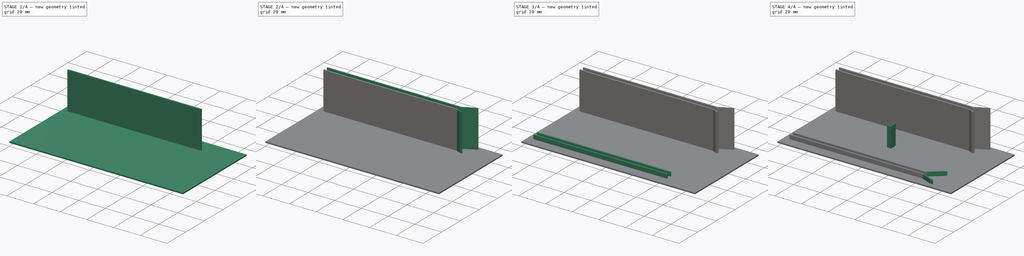
[diagram: build sequence overview — one tinted view per stage of 4, left to right]
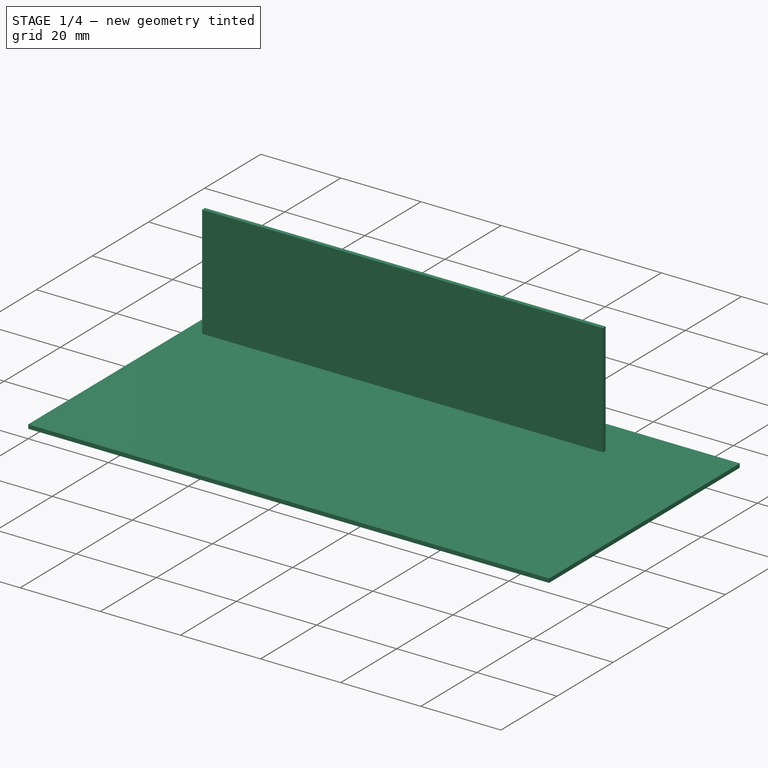
[diagram: stage 1 of 4 — iso view after this stage's code; geometry added in this stage tinted green]
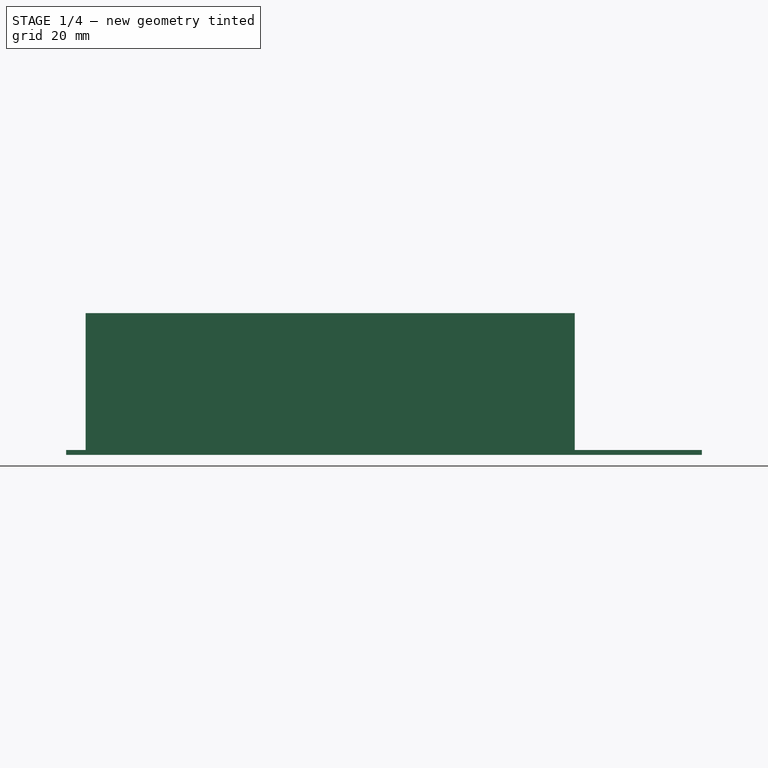
[diagram: stage 1 of 4 — front view after this stage's code; geometry added in this stage tinted green]
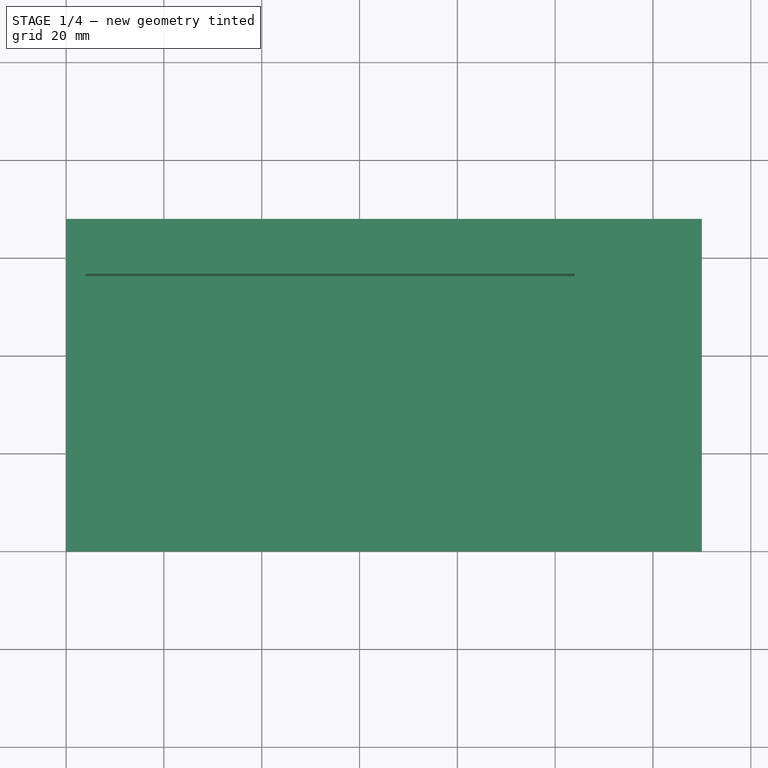
[diagram: stage 1 of 4 — top view after this stage's code; geometry added in this stage tinted green]
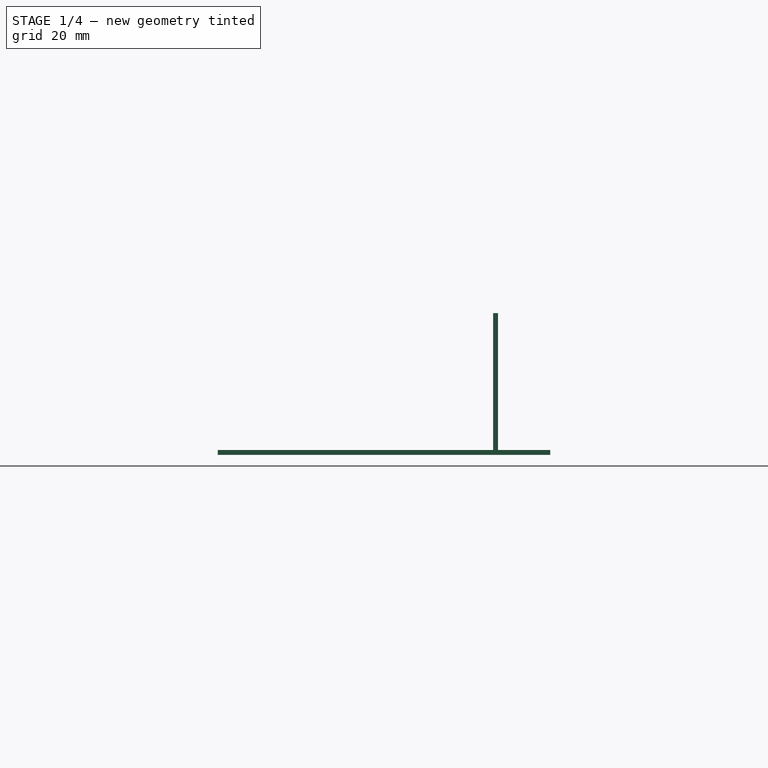
[diagram: stage 1 of 4 — right view after this stage's code; geometry added in this stage tinted green]
FCSTD DOCUMENT  (FreeCAD 0.17R13541 (Git))
Label: pi_top_2
License: All rights reserved
LicenseURL: http://en.wikipedia.org/wiki/All_rights_reserved
objects: Sketcher::SketchObject×9, PartDesign::Pad×9, PartDesign::Body×1
note: 28 computed .brp shape members not serialized (recipe doc carries the construction recipe); baked Part::Feature solids carry a one-line shape summary decoded from their .brp

FEATURE [Sketcher::SketchObject] Sketch
  MapMode = 5
  Support = -> [XY_Plane]
  sketch-geometry (4):
    g0: LineSegment StartX=0 StartY=0 StartZ=0 EndX=130 EndY=0 EndZ=0
    g1: LineSegment StartX=130 StartY=0 StartZ=0 EndX=130 EndY=68 EndZ=0
    g2: LineSegment StartX=130 StartY=68 StartZ=0 EndX=0 EndY=68 EndZ=0
    g3: LineSegment StartX=0 StartY=68 StartZ=0 EndX=0 EndY=0 EndZ=0
  constraints (13):
    c: Coincident(g0,g1)
    c: Coincident(g1,g2)
    c: Coincident(g2,g3)
    c: Coincident(g3,g0)
    c: Horizontal(g0)
    c: Horizontal(g2)
    c: Vertical(g1)
    c: Vertical(g3)
    c: Coincident(g0,g-1)
    c: Equal(g0,g2)
    c: Equal(g1,g3)
    c: Distance(g0) = 130  'total length'
    c: Distance(g3) = 68  'total height'
FEATURE [PartDesign::Pad] Pad
  Length = 1
  Length2 = 100
  Profile = -> Sketch
  Reversed = true
  Type = 0
FEATURE [Sketcher::SketchObject] Sketch001
  MapMode = 5
  Support = -> [XY_Plane]
  sketch-geometry (4):
    g0: LineSegment StartX=4 StartY=56.3 StartZ=0 EndX=104 EndY=56.3 EndZ=0
    g1: LineSegment StartX=104 StartY=56.3 StartZ=0 EndX=104 EndY=57.3 EndZ=0
    g2: LineSegment StartX=104 StartY=57.3 StartZ=0 EndX=4 EndY=57.3 EndZ=0
    g3: LineSegment StartX=4 StartY=57.3 StartZ=0 EndX=4 EndY=56.3 EndZ=0
  constraints (14):
    c: Coincident(g0,g1)
    c: Coincident(g1,g2)
    c: Coincident(g2,g3)
    c: Coincident(g3,g0)
    c: Horizontal(g0)
    c: Horizontal(g2)
    c: Vertical(g1)
    c: Vertical(g3)
    c: Equal(g0,g2)
    c: Equal(g1,g3)
    c: Distance(g0) = 100
    c: Distance(g3) = 1
    c: DistanceX(g2) = 4
    c: DistanceY(g2) = 57.3
FEATURE [PartDesign::Pad] Pad001
  BaseFeature = -> Pad
  Length = 28
  Length2 = 100
  Profile = -> Sketch001
  Type = 0
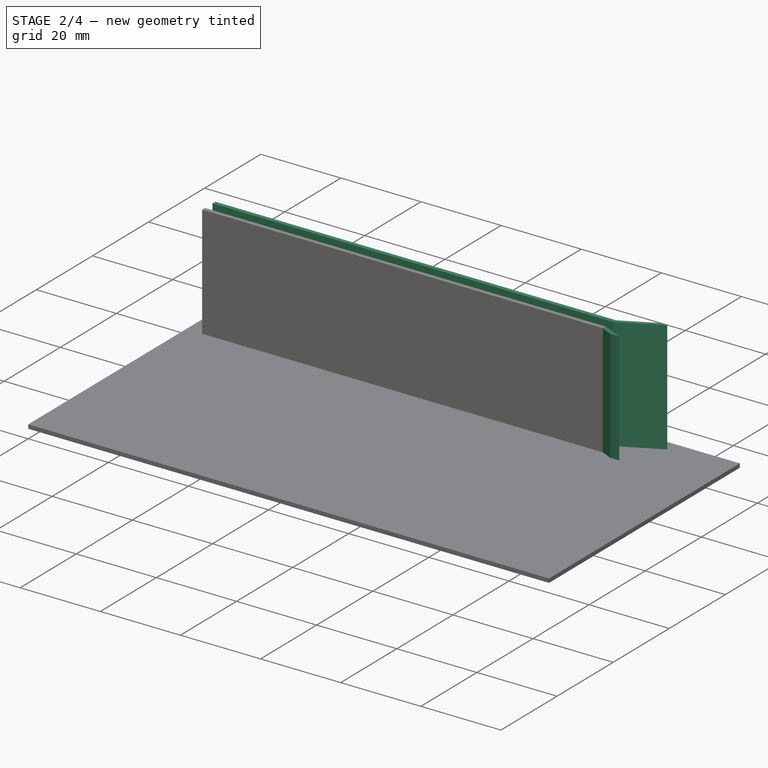
[diagram: stage 2 of 4 — iso view after this stage's code; geometry added in this stage tinted green]
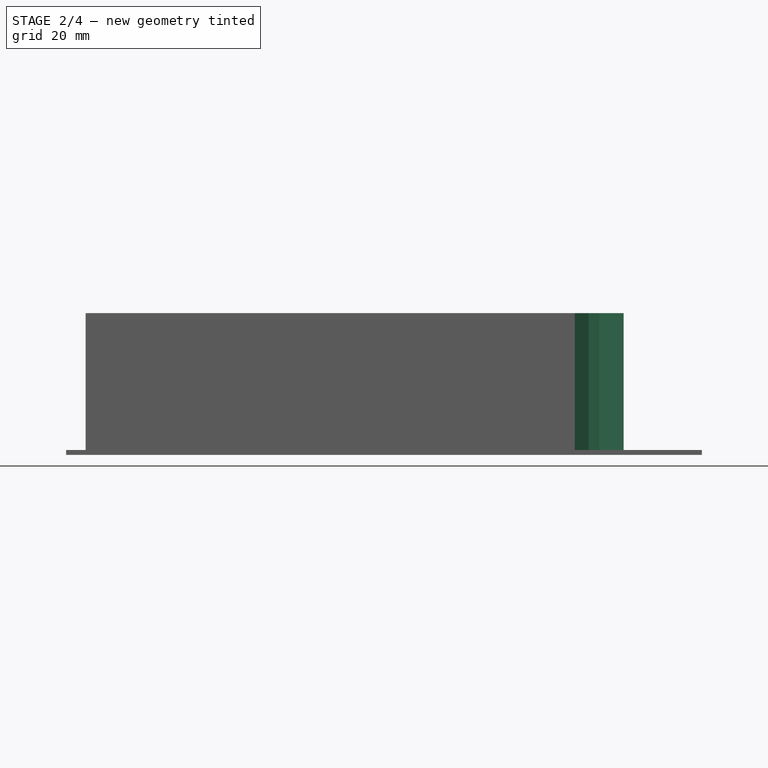
[diagram: stage 2 of 4 — front view after this stage's code; geometry added in this stage tinted green]
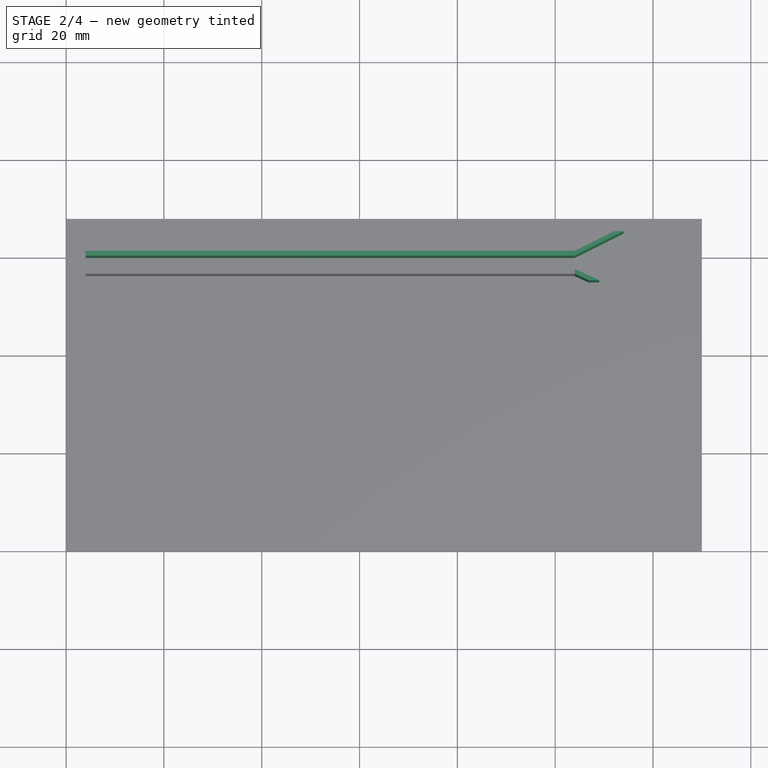
[diagram: stage 2 of 4 — top view after this stage's code; geometry added in this stage tinted green]
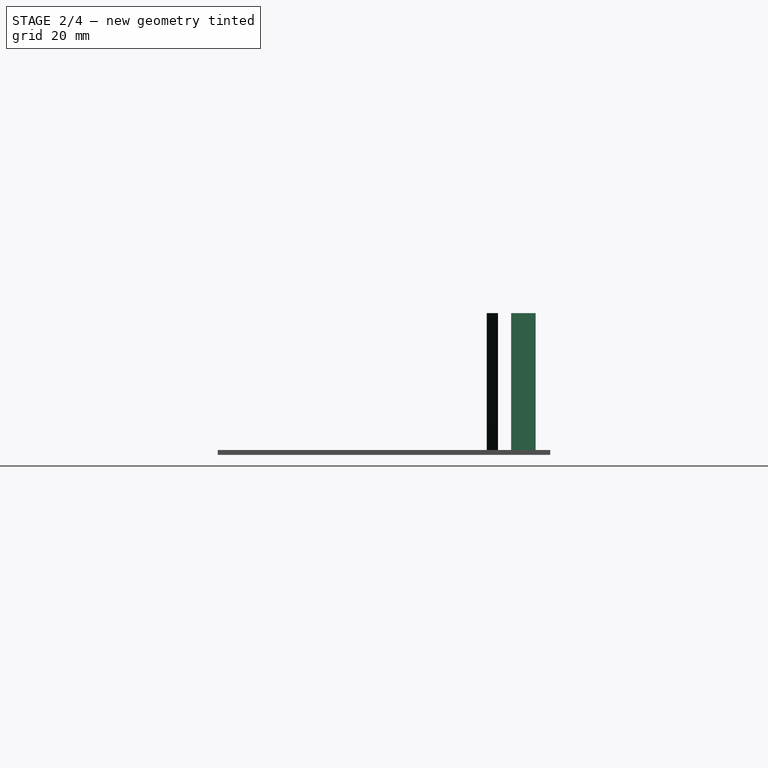
[diagram: stage 2 of 4 — right view after this stage's code; geometry added in this stage tinted green]
FEATURE [Sketcher::SketchObject] Sketch002
  MapMode = 5
  Support = -> [XY_Plane]
  sketch-geometry (4):
    g0: LineSegment StartX=4 StartY=60 StartZ=0 EndX=104 EndY=60 EndZ=0
    g1: LineSegment StartX=104 StartY=60 StartZ=0 EndX=104 EndY=61 EndZ=0
    g2: LineSegment StartX=104 StartY=61 StartZ=0 EndX=4 EndY=61 EndZ=0
    g3: LineSegment StartX=4 StartY=61 StartZ=0 EndX=4 EndY=60 EndZ=0
  constraints (14):
    c: Coincident(g0,g1)
    c: Coincident(g1,g2)
    c: Coincident(g2,g3)
    c: Coincident(g3,g0)
    c: Horizontal(g0)
    c: Horizontal(g2)
    c: Vertical(g1)
    c: Vertical(g3)
    c: Equal(g0,g2)
    c: Equal(g1,g3)
    c: Distance(g0) = 100
    c: Distance(g3) = 1
    c: DistanceX(g2) = 4
    c: DistanceY(g2) = 61
FEATURE [PartDesign::Pad] Pad002
  BaseFeature = -> Pad001
  Length = 28
  Length2 = 100
  Profile = -> Sketch002
  Type = 0
FEATURE [Sketcher::SketchObject] Sketch003
  MapMode = 5
  Support = -> [XY_Plane]
  sketch-geometry (8):
    g0: LineSegment StartX=104 StartY=61 StartZ=0 EndX=112 EndY=65 EndZ=0
    g1: LineSegment StartX=114 StartY=65 StartZ=0 EndX=112 EndY=65 EndZ=0
    g2: LineSegment StartX=114 StartY=65 StartZ=0 EndX=104 EndY=60 EndZ=0
    g3: LineSegment StartX=104 StartY=60 StartZ=0 EndX=104 EndY=61 EndZ=0
    g4: LineSegment StartX=104 StartY=57.3 StartZ=0 EndX=109 EndY=55 EndZ=0
    g5: LineSegment StartX=109 StartY=55 StartZ=0 EndX=106.826 EndY=55 EndZ=0
    g6: LineSegment StartX=106.826 StartY=55 StartZ=0 EndX=104 EndY=56.3 EndZ=0
    g7: LineSegment StartX=104 StartY=56.3 StartZ=0 EndX=104 EndY=57.3 EndZ=0
  constraints (25):
    c: Coincident(g1,g0)
    c: Coincident(g2,g1)
    c: Coincident(g3,g2)
    c: DistanceX(g0) = 104
    c: DistanceY(g0) = 61
    c: Parallel(g0,g2)
    c: Vertical(g3)
    c: Distance(g3) = 1
    c: DistanceX(g3) = 104
    c: DistanceY(g3) = 61
    c: Horizontal(g1)
    c: Coincident(g5,g4)
    c: Horizontal(g5)
    c: Coincident(g6,g5)
    c: Coincident(g7,g6)
    c: Coincident(g7,g4)
    c: Vertical(g7)
    c: Parallel(g4,g6)
    c: Distance(g7) = 1
    c: DistanceX(g4) = 109
    c: DistanceY(g4) = 55
    c: DistanceX(g4) = 104
    c: DistanceY(g4) = 57.3
    c: DistanceX(g1) = 114
    c: DistanceY(g1) = 65
FEATURE [PartDesign::Pad] Pad003
  BaseFeature = -> Pad002
  Length = 28
  Length2 = 100
  Profile = -> Sketch003
  Type = 0
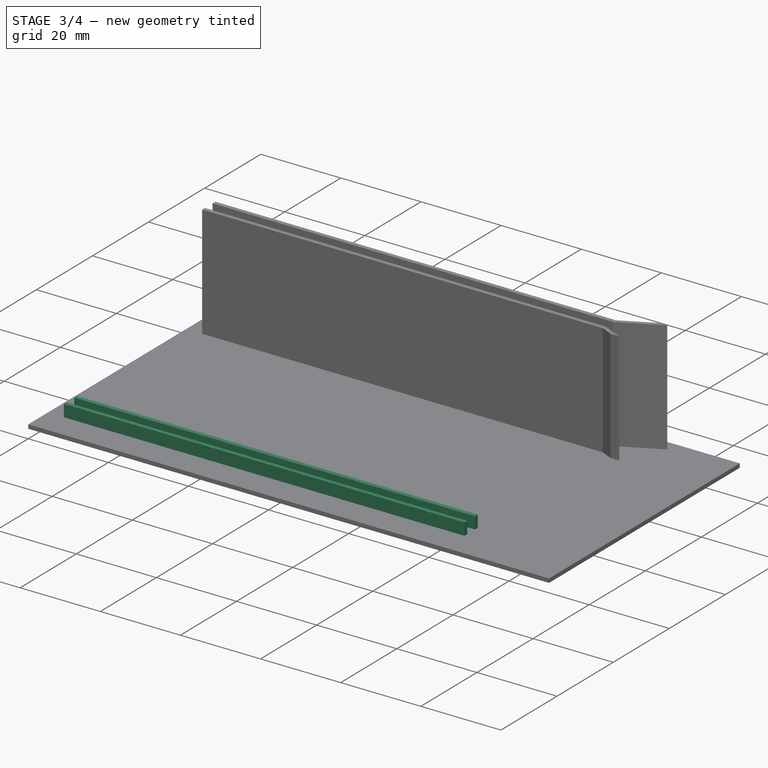
[diagram: stage 3 of 4 — iso view after this stage's code; geometry added in this stage tinted green]
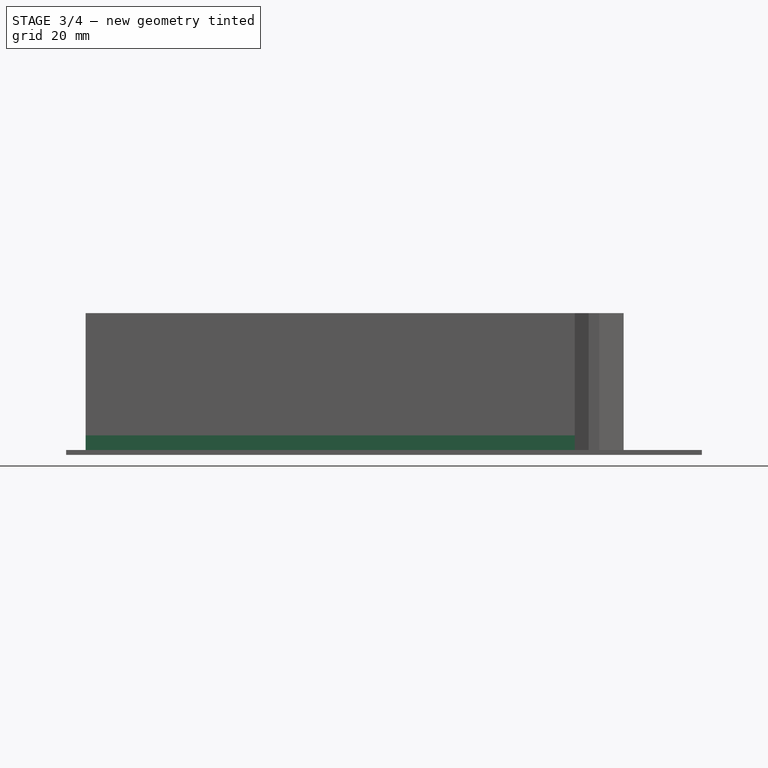
[diagram: stage 3 of 4 — front view after this stage's code; geometry added in this stage tinted green]
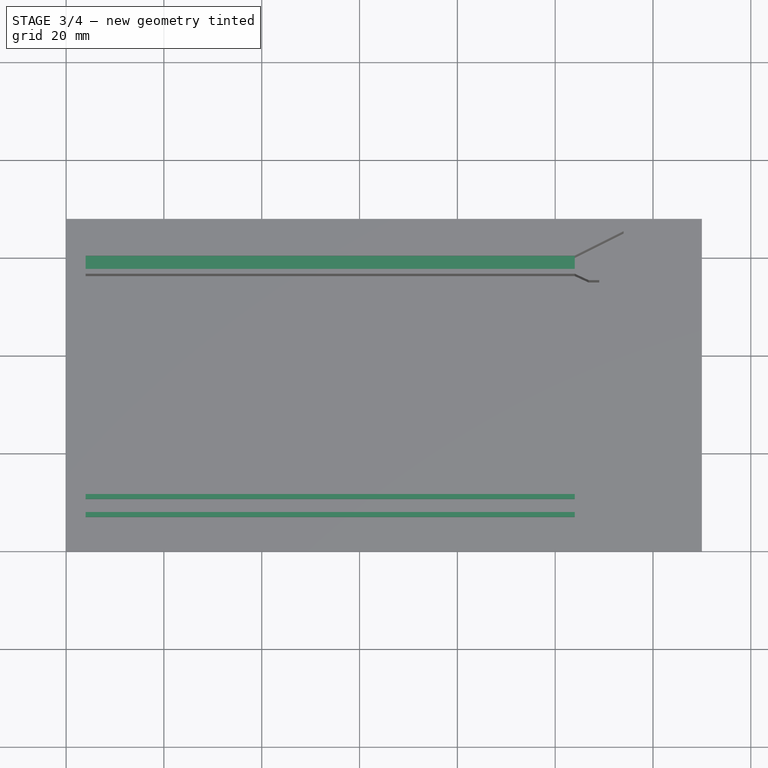
[diagram: stage 3 of 4 — top view after this stage's code; geometry added in this stage tinted green]
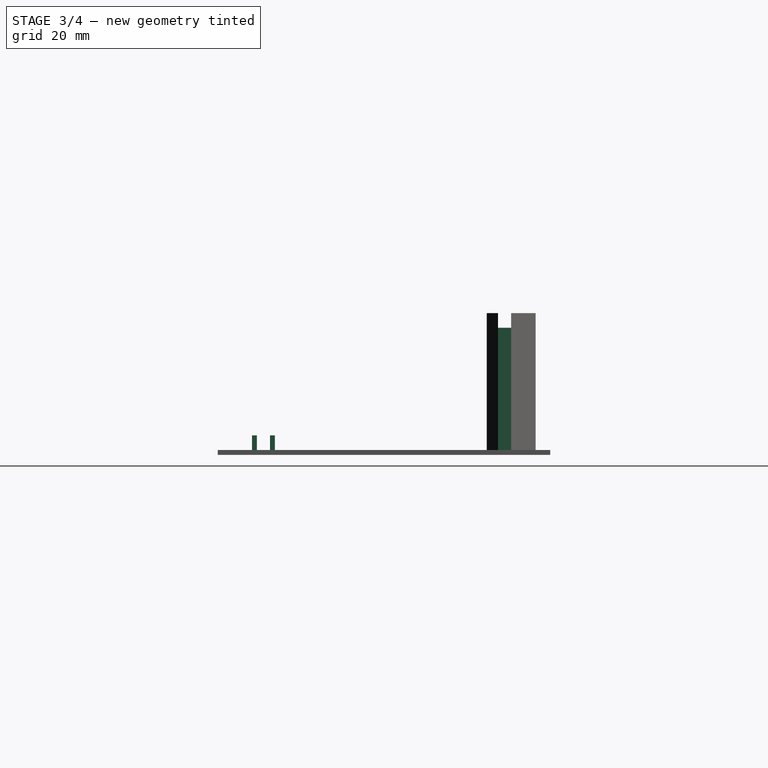
[diagram: stage 3 of 4 — right view after this stage's code; geometry added in this stage tinted green]
FEATURE [Sketcher::SketchObject] Sketch004
  MapMode = 5
  Support = -> [XY_Plane]
  sketch-geometry (4):
    g0: LineSegment StartX=4 StartY=60 StartZ=0 EndX=104 EndY=60 EndZ=0
    g1: LineSegment StartX=104 StartY=60 StartZ=0 EndX=104 EndY=57.3 EndZ=0
    g2: LineSegment StartX=104 StartY=57.3 StartZ=0 EndX=4 EndY=57.3 EndZ=0
    g3: LineSegment StartX=4 StartY=57.3 StartZ=0 EndX=4 EndY=60 EndZ=0
  constraints (12):
    c: Coincident(g0,g1)
    c: Coincident(g1,g2)
    c: Coincident(g2,g3)
    c: Coincident(g3,g0)
    c: Horizontal(g0)
    c: Horizontal(g2)
    c: Vertical(g1)
    c: Vertical(g3)
    c: DistanceX(g0) = 4
    c: DistanceY(g0) = 60
    c: Distance(g0) = 100
    c: Distance(g1) = 2.7
FEATURE [PartDesign::Pad] Pad004
  BaseFeature = -> Pad003
  Length = 25
  Length2 = 100
  Profile = -> Sketch004
  Type = 0
FEATURE [Sketcher::SketchObject] Sketch005
  MapMode = 5
  Support = -> [XY_Plane]
  sketch-geometry (4):
    g0: LineSegment StartX=4 StartY=8 StartZ=0 EndX=104 EndY=8 EndZ=0
    g1: LineSegment StartX=104 StartY=8 StartZ=0 EndX=104 EndY=7 EndZ=0
    g2: LineSegment StartX=104 StartY=7 StartZ=0 EndX=4 EndY=7 EndZ=0
    g3: LineSegment StartX=4 StartY=7 StartZ=0 EndX=4 EndY=8 EndZ=0
  constraints (14):
    c: Coincident(g0,g1)
    c: Coincident(g1,g2)
    c: Coincident(g2,g3)
    c: Coincident(g3,g0)
    c: Horizontal(g0)
    c: Horizontal(g2)
    c: Vertical(g1)
    c: Vertical(g3)
    c: Equal(g0,g2)
    c: Equal(g1,g3)
    c: Distance(g0) = 100
    c: Distance(g3) = 1
    c: DistanceX(g2) = 4
    c: DistanceY(g2) = 7
FEATURE [PartDesign::Pad] Pad005
  BaseFeature = -> Pad004
  Length = 3
  Length2 = 100
  Profile = -> Sketch005
  Type = 0
FEATURE [Sketcher::SketchObject] Sketch006
  MapMode = 5
  Support = -> [XY_Plane]
  sketch-geometry (4):
    g0: LineSegment StartX=4 StartY=11.7 StartZ=0 EndX=104 EndY=11.7 EndZ=0
    g1: LineSegment StartX=104 StartY=11.7 StartZ=0 EndX=104 EndY=10.7 EndZ=0
    g2: LineSegment StartX=104 StartY=10.7 StartZ=0 EndX=4 EndY=10.7 EndZ=0
    g3: LineSegment StartX=4 StartY=10.7 StartZ=0 EndX=4 EndY=11.7 EndZ=0
  constraints (14):
    c: Coincident(g0,g1)
    c: Coincident(g1,g2)
    c: Coincident(g2,g3)
    c: Coincident(g3,g0)
    c: Horizontal(g0)
    c: Horizontal(g2)
    c: Vertical(g1)
    c: Vertical(g3)
    c: Equal(g0,g2)
    c: Equal(g1,g3)
    c: Distance(g0) = 100
    c: Distance(g3) = 1
    c: DistanceX(g2) = 4
    c: DistanceY(g2) = 10.7
FEATURE [PartDesign::Pad] Pad006
  BaseFeature = -> Pad005
  Length = 3
  Length2 = 100
  Profile = -> Sketch006
  Type = 0
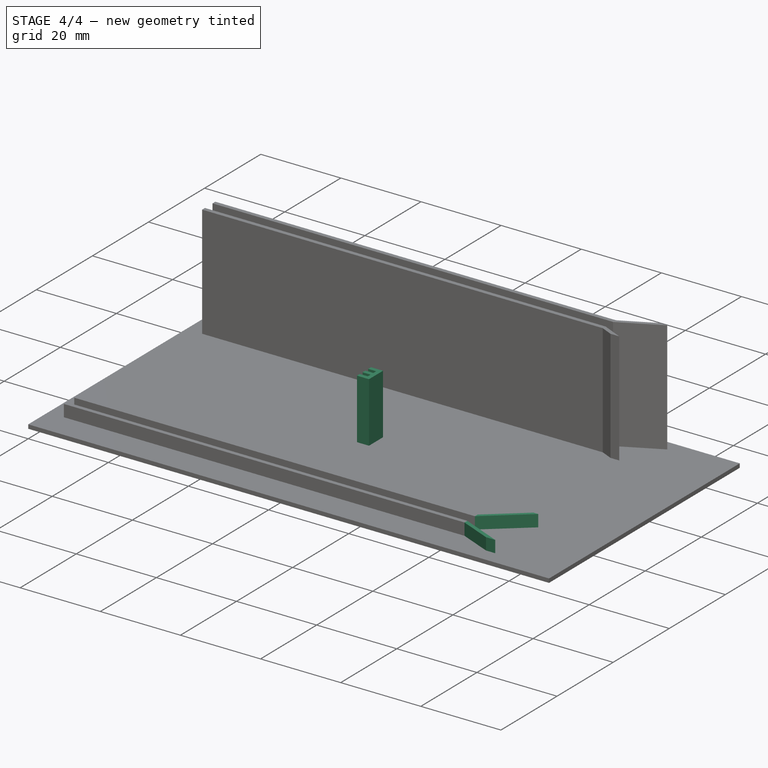
[diagram: stage 4 of 4 — iso view after this stage's code; geometry added in this stage tinted green]
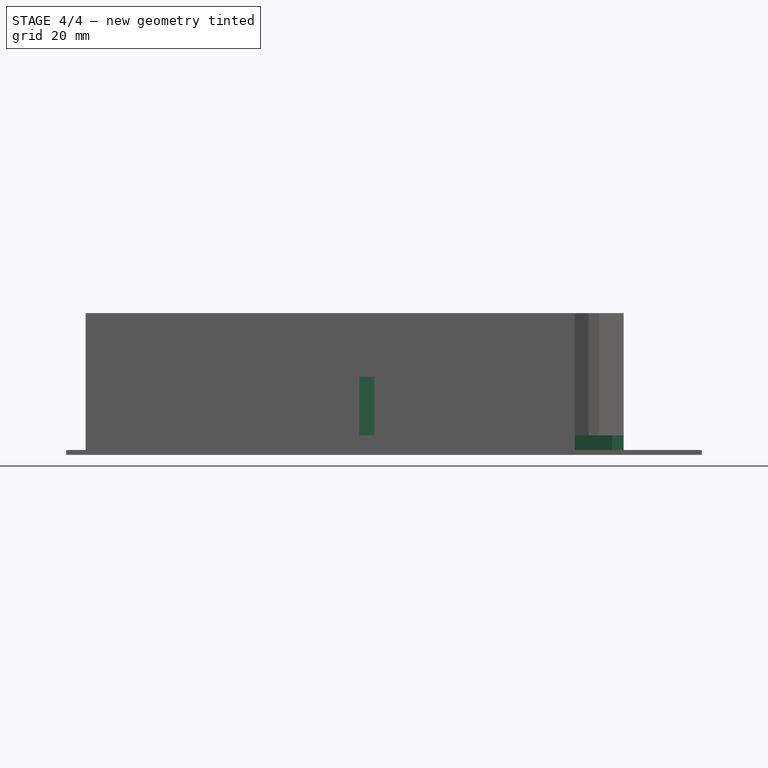
[diagram: stage 4 of 4 — front view after this stage's code; geometry added in this stage tinted green]
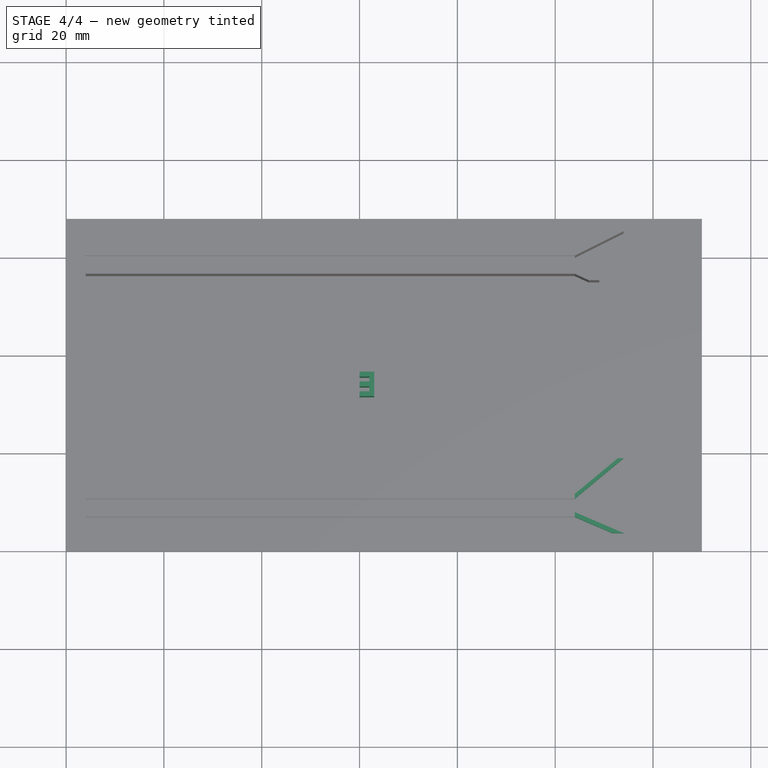
[diagram: stage 4 of 4 — top view after this stage's code; geometry added in this stage tinted green]
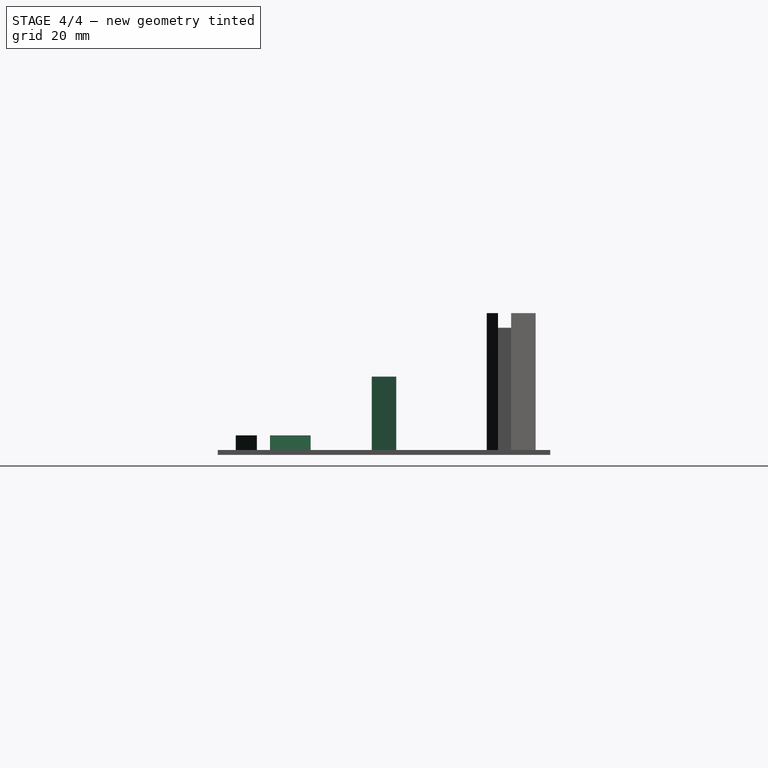
[diagram: stage 4 of 4 — right view after this stage's code; geometry added in this stage tinted green]
FEATURE [Sketcher::SketchObject] Sketch007
  MapMode = 5
  Support = -> [XY_Plane]
  sketch-geometry (8):
    g0: LineSegment StartX=104 StartY=10.7 StartZ=0 EndX=114 EndY=19 EndZ=0
    g1: LineSegment StartX=112.795 StartY=19 StartZ=0 EndX=114 EndY=19 EndZ=0
    g2: LineSegment StartX=112.795 StartY=19 StartZ=0 EndX=104 EndY=11.7 EndZ=0
    g3: LineSegment StartX=104 StartY=11.7 StartZ=0 EndX=104 EndY=10.7 EndZ=0
    g4: LineSegment StartX=104 StartY=8 StartZ=0 EndX=114 EndY=3.7 EndZ=0
    g5: LineSegment StartX=114 StartY=3.7 StartZ=0 EndX=111.674 EndY=3.7 EndZ=0
    g6: LineSegment StartX=111.674 StartY=3.7 StartZ=0 EndX=104 EndY=7 EndZ=0
    g7: LineSegment StartX=104 StartY=7 StartZ=0 EndX=104 EndY=8 EndZ=0
  constraints (25):
    c: Coincident(g1,g0)
    c: Coincident(g2,g1)
    c: Coincident(g3,g2)
    c: DistanceX(g0) = 104
    c: DistanceY(g0) = 10.7
    c: Parallel(g0,g2)
    c: Vertical(g3)
    c: Distance(g3) = 1
    c: DistanceX(g3) = 104
    c: DistanceY(g3) = 10.7
    c: Horizontal(g1)
    c: DistanceX(g0) = 114
    c: DistanceY(g0) = 19
    c: Coincident(g5,g4)
    c: Horizontal(g5)
    c: Coincident(g6,g5)
    c: Coincident(g7,g6)
    c: Coincident(g7,g4)
    c: Vertical(g7)
    c: Parallel(g4,g6)
    c: Distance(g7) = 1
    c: DistanceX(g4) = 114
    c: DistanceY(g4) = 3.7
    c: DistanceX(g4) = 104
    c: DistanceY(g4) = 8
FEATURE [PartDesign::Pad] Pad007
  BaseFeature = -> Pad006
  Length = 3
  Length2 = 100
  Profile = -> Sketch007
  Type = 0
FEATURE [Sketcher::SketchObject] Sketch008
  MapMode = 5
  Support = -> [XY_Plane]
  sketch-geometry (12):
    g0: LineSegment StartX=60 StartY=36.5 StartZ=0 EndX=63 EndY=36.5 EndZ=0
    g1: LineSegment StartX=63 StartY=36.5 StartZ=0 EndX=63 EndY=31.5 EndZ=0
    g2: LineSegment StartX=60 StartY=36.5 StartZ=0 EndX=60 EndY=35.5 EndZ=0
    g3: LineSegment StartX=60 StartY=35.5 StartZ=0 EndX=62 EndY=35.5 EndZ=0
    g4: LineSegment StartX=62 StartY=35.5 StartZ=0 EndX=62 EndY=34.5 EndZ=0
    g5: LineSegment StartX=62 StartY=34.5 StartZ=0 EndX=60 EndY=34.5 EndZ=0
    g6: LineSegment StartX=60 StartY=34.5 StartZ=0 EndX=60 EndY=33.5 EndZ=0
    g7: LineSegment StartX=60 StartY=33.5 StartZ=0 EndX=62 EndY=33.5 EndZ=0
    g8: LineSegment StartX=62 StartY=33.5 StartZ=0 EndX=62 EndY=32.5 EndZ=0
    g9: LineSegment StartX=62 StartY=32.5 StartZ=0 EndX=60 EndY=32.5 EndZ=0
    g10: LineSegment StartX=60 StartY=32.5 StartZ=0 EndX=60 EndY=31.5 EndZ=0
    g11: LineSegment StartX=60 StartY=31.5 StartZ=0 EndX=63 EndY=31.5 EndZ=0
  constraints (36):
    c: Horizontal(g0)
    c: Coincident(g1,g0)
    c: Vertical(g1)
    c: Distance(g0) = 3
    c: Distance(g1) = 5
    c: Coincident(g2,g0)
    c: Vertical(g2)
    c: Coincident(g3,g2)
    c: Horizontal(g3)
    c: Distance(g2) = 1
    c: Distance(g3) = 2
    c: Coincident(g4,g3)
    c: Vertical(g4)
    c: Coincident(g5,g4)
    c: Horizontal(g5)
    c: Distance(g4) = 1
    c: Equal(g5,g3)
    c: Coincident(g6,g5)
    c: Vertical(g6)
    c: Coincident(g7,g6)
    c: Horizontal(g7)
    c: Coincident(g8,g7)
    c: Vertical(g8)
    c: Distance(g6) = 1
    c: Distance(g8) = 1
    c: Equal(g7,g5)
    c: Coincident(g9,g8)
    c: Horizontal(g9)
    c: Coincident(g10,g9)
    c: Vertical(g10)
    c: Equal(g9,g7)
    c: Distance(g10) = 1
    c: Coincident(g11,g10)
    c: Coincident(g11,g1)
    c: DistanceX(g10) = 60
    c: DistanceY(g10) = 31.5
FEATURE [PartDesign::Pad] Pad008
  BaseFeature = -> Pad007
  Length = 15
  Length2 = 100
  Profile = -> Sketch008
  Type = 0
FEATURE [PartDesign::Body] Body  label="Top Slider"
  Group = -> [Sketch,Pad,Sketch001,Pad001,Sketch002,Pad002,Sketch003,Pad003,Sketch004,Pad004,Sketch005,Pad005,Sketch006,Pad006,Sketch007,Pad007,Sketch008,Pad008]
  Origin = -> Origin
  Tip = -> Pad008
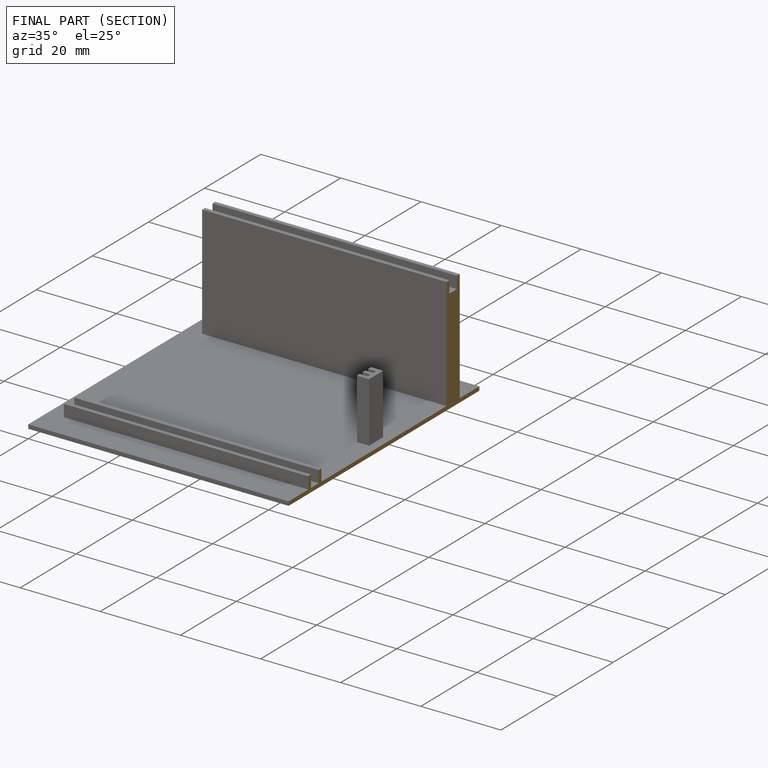
[diagram: finished part — half-section view (interior)]
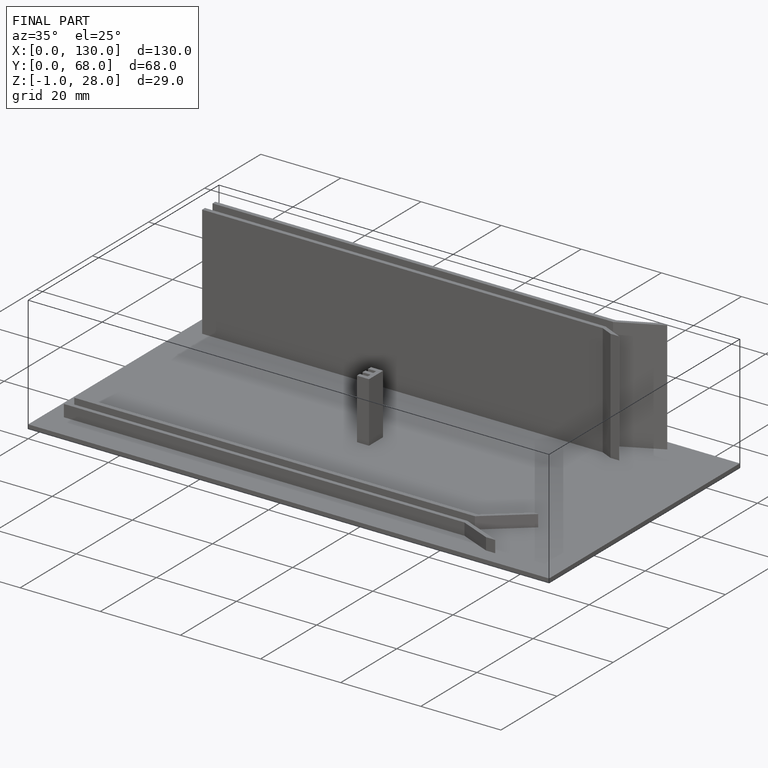
[diagram: finished part — iso view with bounding-box wireframe]
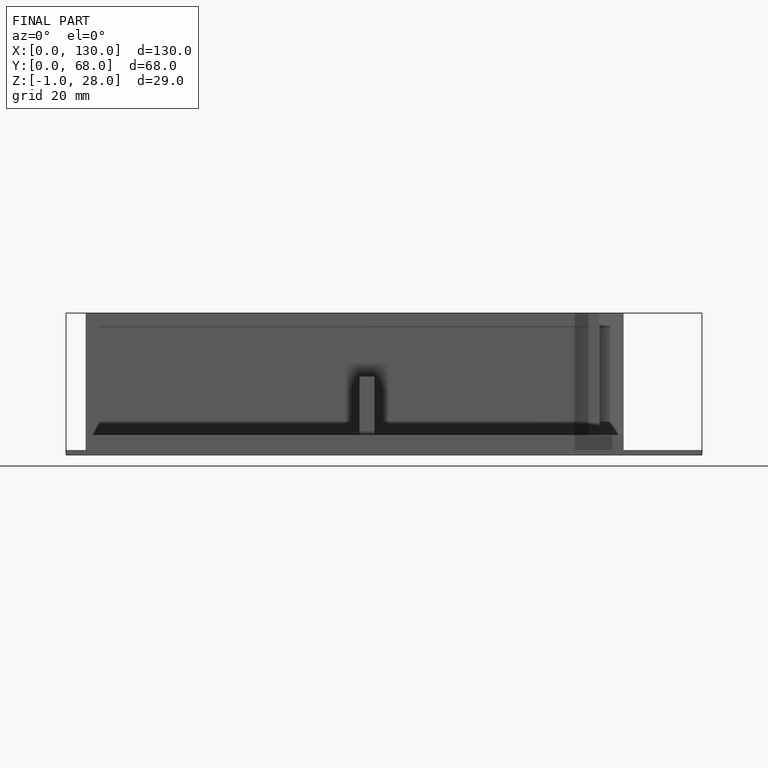
[diagram: finished part — front view with bounding-box wireframe]
